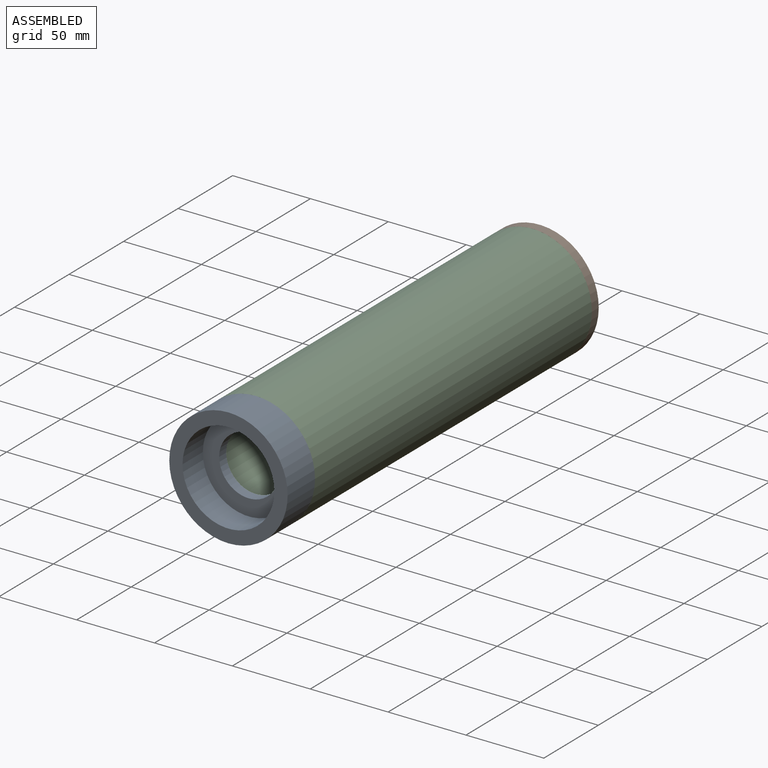
[diagram: assembled view]
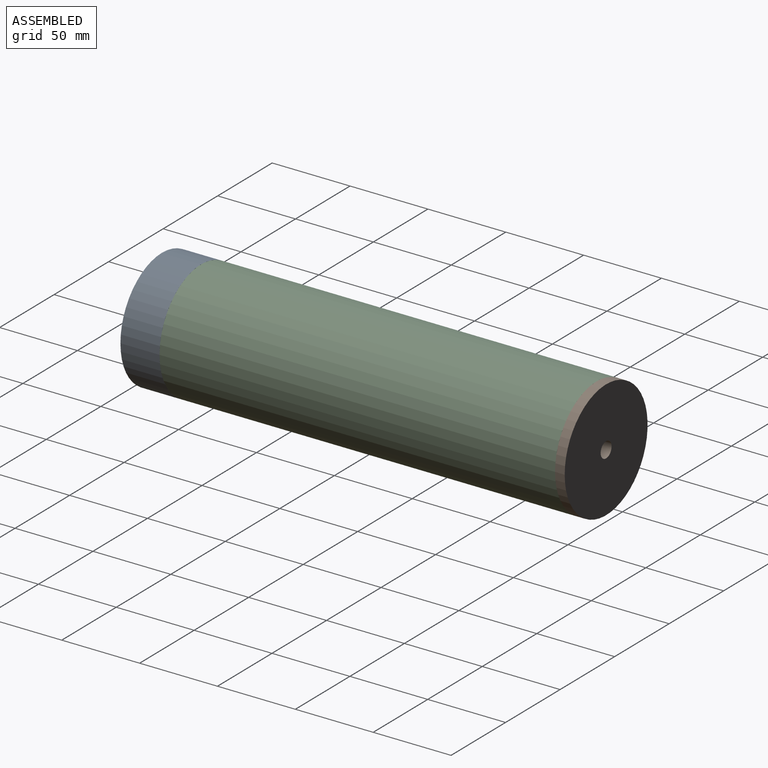
[diagram: assembled view, second angle]
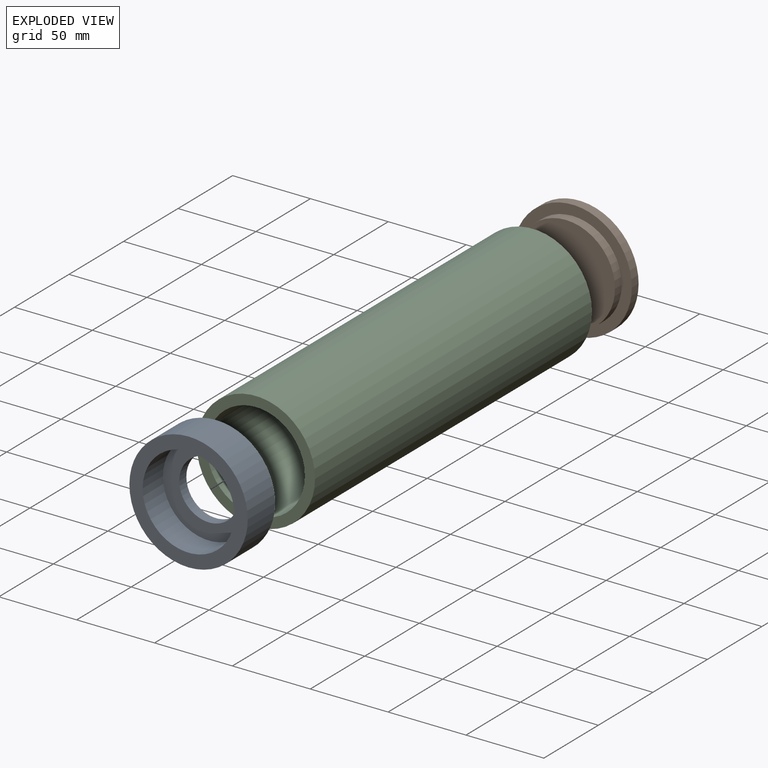
[diagram: exploded view]
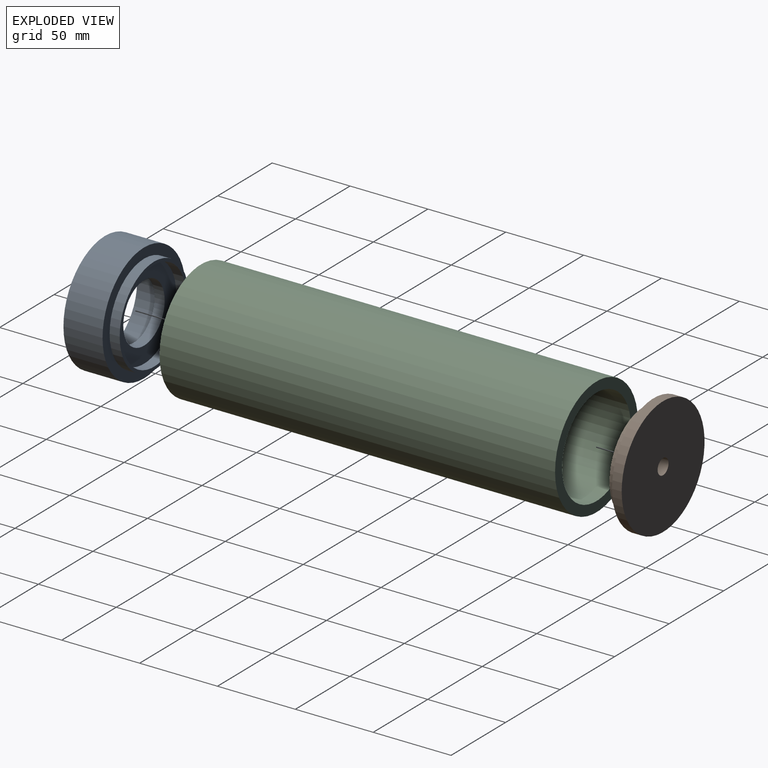
[diagram: exploded view, second angle]
ASSEMBLY  parts=3 mates=2
PART A: 10 faces, bbox 76x76x31.6 mm
  f0: plane 59x59mm, normal (0,0,1), area 1599.9mm2, adj f5,f8
  f1: cylinder r=29.5mm len=59mm, axis (0,0,1), area 1195.5mm2, adj f3,f4
  f2: cylinder r=31.5mm len=63mm, axis (0,0,1), area 1276.6mm2, adj f3,f7
  f3: plane 63x63mm, normal (0,0,-1), area 383.3mm2, adj f1,f2
  f4: plane 59x59mm, normal (0,0,-1), area 1599.9mm2, adj f1,f5
  f5: cylinder r=19mm len=38mm, axis (0,0,-1), area 776mm2, adj f0,f4
  f6: cylinder r=38mm len=76mm, axis (0,0,-1), area 5992.9mm2, adj f7,f9
  f7: plane 76x76mm, normal (0,0,-1), area 1419.2mm2, adj f2,f6
  f8: cylinder r=29.5mm len=59mm, axis (0,0,-1), area 3447.6mm2, adj f0,f9
  f9: plane 76x76mm, normal (0,0,1), area 1802.5mm2, adj f6,f8
PART B: 6 faces, bbox 76x76x12.4 mm
  f0: cylinder r=31.5mm len=63mm, axis (0,0,1), area 1227.1mm2, adj f1,f4
  f1: plane 63x63mm, normal (0,0,-1), area 3038.7mm2, adj f0,f5
  f2: plane 76x76mm, normal (0,0,1), area 4457.9mm2, adj f3,f5
  f3: cylinder r=38mm len=76mm, axis (0,0,-1), area 1480.3mm2, adj f2,f4
  f4: plane 76x76mm, normal (0,0,-1), area 1419.2mm2, adj f0,f3
  f5: cylinder r=5mm len=12.4mm, axis (0,0,1), area 389.6mm2, adj f1,f2
PART C: 4 faces, bbox 76x254x76 mm
  f0: cylinder r=31.5mm len=254mm, axis (0,-1,0), area 50271.8mm2, adj f2,f3
  f1: cylinder r=38mm len=254mm, axis (0,-1,0), area 60645.3mm2, adj f2,f3
  f2: plane 76x76mm, normal (0,1,0), area 1419.2mm2, adj f0,f1
  f3: plane 76x76mm, normal (0,-1,0), area 1419.2mm2, adj f0,f1
PLACE A rot(axis=(1,0,0),90deg) t=(-33.56,-59.15,-27.12)mm
PLACE B rot(axis=(-1,0,0),90deg) t=(-33.56,194.85,-27.12)mm
PLACE C t=(-33.56,-59.15,-27.12)mm
MATE fastened B.f0 <-> C.f0  axis (0,-1,0) through (-33.56,194.85,-27.12)mm
MATE fastened C.f0 <-> A.f1  axis (0,-1,0) through (-33.56,-59.15,-27.12)mm
